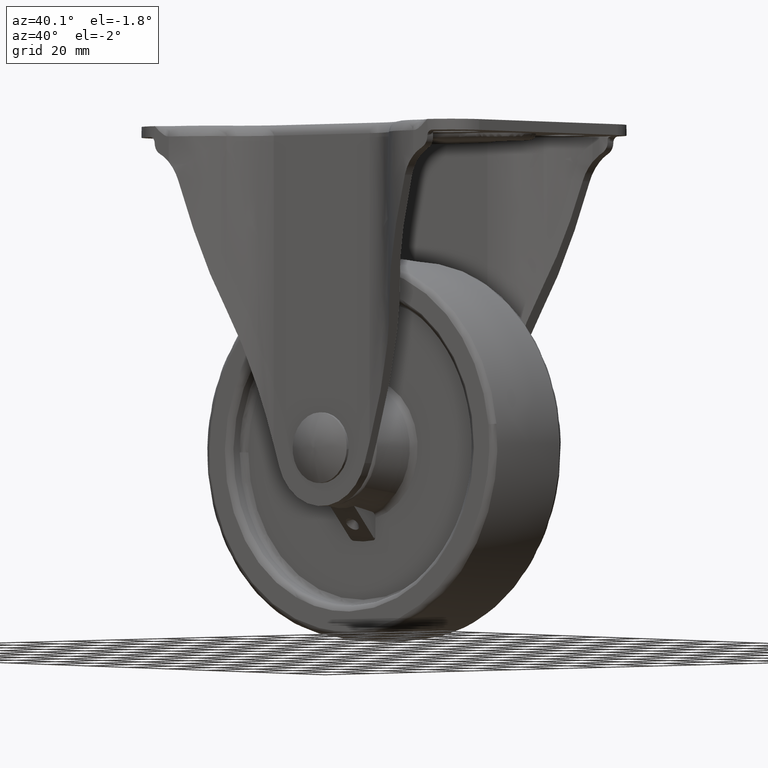
[diagram: clean part render]
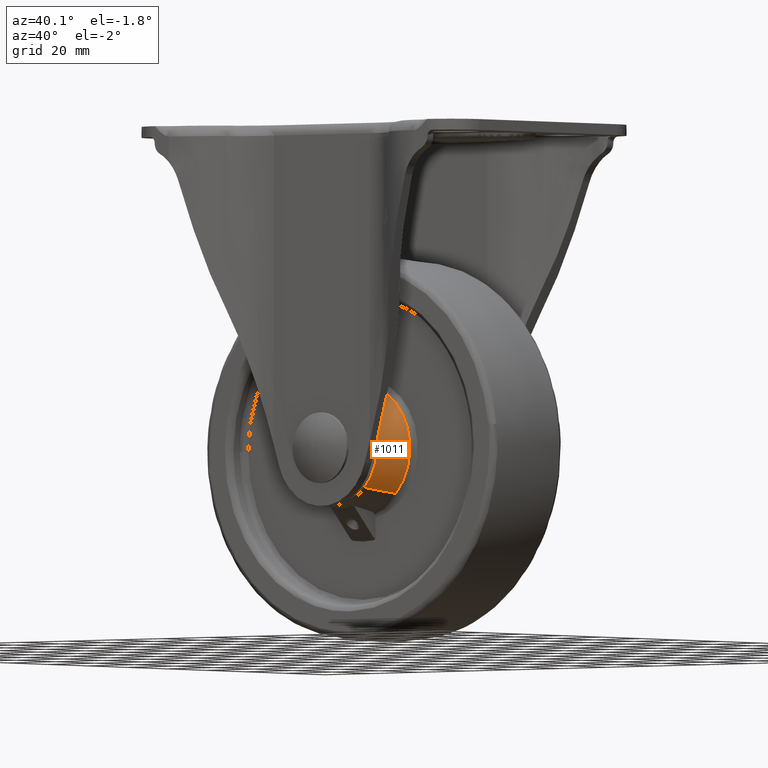
[diagram: same view with one face highlighted and labeled with its STEP entity id]
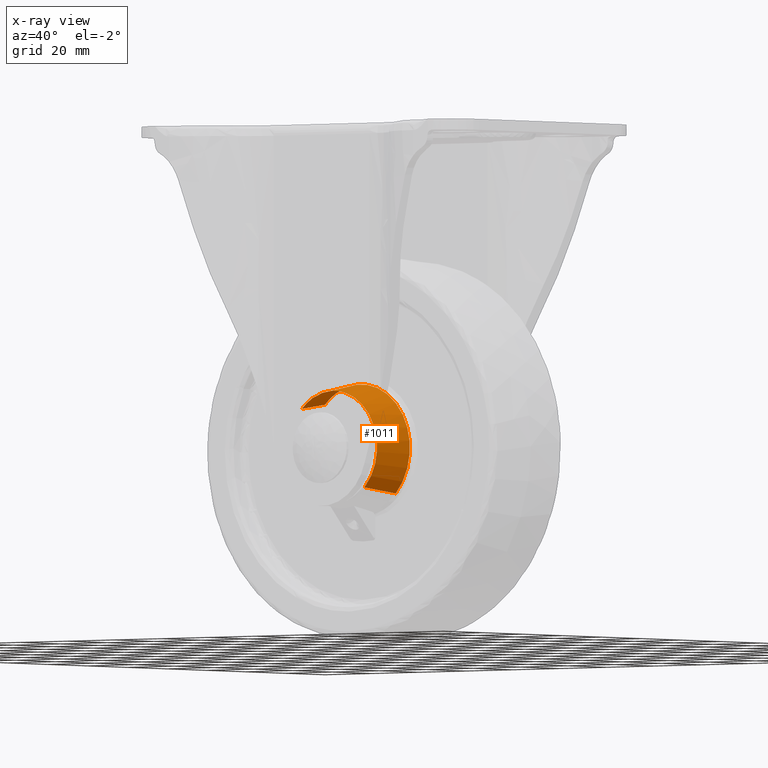
[diagram: x-ray of the same camera — body ghosted, the highlighted face saturated]
A machine part, auxiliary view. The second image highlights one B-rep face of the part: STEP entity #1011.
The next image is the same camera in x-ray: the body ghosted, the highlighted face saturated — about 0% of this face is hidden behind the body in this view.
In plain terms, the highlighted face is a freeform B-spline surface patch.
Its self-contained STEP definition (entity closure, byte-faithful):
#803=CARTESIAN_POINT('',(-15.051621192628151,-11.972101837003610,14.732329258532770));
#804=VERTEX_POINT('',#803);
#820=CARTESIAN_POINT('',(15.051621172807369,-11.972100720820990,-14.732343560151280));
#821=VERTEX_POINT('',#820);
#822=CARTESIAN_POINT('',(15.051621172807371,-11.972100720820997,-14.732343560151278));
#823=CARTESIAN_POINT('',(22.118448203407993,-11.972100720820997,-7.512361656801093));
#824=CARTESIAN_POINT('',(20.910581288129780,-11.972100929607560,2.518054082337512));
#825=CARTESIAN_POINT('',(18.677554631028443,-11.972101315598723,21.061641495811855));
#826=CARTESIAN_POINT('',(0.000000119517598,-11.972101669289570,21.061641452188390));
#827=CARTESIAN_POINT('',(-8.856570571563466,-11.972101837003610,21.061641431502910));
#828=CARTESIAN_POINT('',(-15.051621192628151,-11.972101837003608,14.732329258532769));
#836=(BOUNDED_CURVE()B_SPLINE_CURVE(2,(#822,#823,#824,#825,#826,#827,#828),.UNSPECIFIED.,.F.,.U.)B_SPLINE_CURVE_WITH_KNOTS((3,2,2,3),(0.097095728330001,0.250000000000000,0.500000000000000,0.636637793524819),.UNSPECIFIED.)CURVE()GEOMETRIC_REPRESENTATION_ITEM()RATIONAL_B_SPLINE_CURVE((0.880366134209270,0.845984643392179,1.0,0.748183365111898,1.0,0.862369322544180,0.875183061799474))REPRESENTATION_ITEM(''));
#837=EDGE_CURVE('',#821,#804,#836,.T.);
#877=CARTESIAN_POINT('',(13.325070980316800,-25.673648140294681,-13.042418054353750));
#878=VERTEX_POINT('',#877);
#879=CARTESIAN_POINT('',(13.325070980316800,-25.673648140294681,-13.042418054353750));
#880=CARTESIAN_POINT('',(15.051621172807369,-11.972100720820990,-14.732343560151280));
#881=QUASI_UNIFORM_CURVE('',1,(#879,#880),.UNSPECIFIED.,.F.,.U.);
#882=EDGE_CURVE('',#878,#821,#881,.T.);
#914=CARTESIAN_POINT('',(-13.325070980316800,-25.673648140294681,13.042404054353570));
#915=VERTEX_POINT('',#914);
#931=CARTESIAN_POINT('',(-13.325070980316800,-25.673648140294681,13.042404054353570));
#932=CARTESIAN_POINT('',(-15.051621192628151,-11.972101837003610,14.732329258532770));
#933=QUASI_UNIFORM_CURVE('',1,(#931,#932),.UNSPECIFIED.,.F.,.U.);
#934=EDGE_CURVE('',#915,#804,#933,.T.);
#943=CARTESIAN_POINT('',(-13.281907225377500,-26.016186826649840,13.000155916582949));
#944=CARTESIAN_POINT('',(-0.281744308794460,-26.016186826649840,26.282063141960442));
#945=CARTESIAN_POINT('',(13.000162916583040,-26.016186826649840,13.281900225377409));
#946=CARTESIAN_POINT('',(26.282070141960542,-26.016186826649840,0.281737308794367));
#947=CARTESIAN_POINT('',(13.281907225377500,-26.016186826649840,-13.000169916583131));
#948=CARTESIAN_POINT('',(-15.095864021484310,-11.620998568177431,14.775633901248760));
#949=CARTESIAN_POINT('',(-0.320223120235456,-11.620998568177429,29.871497922733067));
#950=CARTESIAN_POINT('',(14.775640901248851,-11.620998568177431,15.095857021484219));
#951=CARTESIAN_POINT('',(29.871504922733170,-11.620998568177429,0.320216120235363));
#952=CARTESIAN_POINT('',(15.095864021484310,-11.620998568177431,-14.775647901248950));
#960=(BOUNDED_SURFACE()B_SPLINE_SURFACE(2,1,((#943,#948),(#944,#949),(#945,#950),(#946,#951),(#947,#952)),.UNSPECIFIED.,.F.,.F.,.U.)B_SPLINE_SURFACE_WITH_KNOTS((3,2,3),(2,2),(0.0,34.998655739313328,69.997311478626656),(0.0,14.617257141099930),.UNSPECIFIED.)GEOMETRIC_REPRESENTATION_ITEM()RATIONAL_B_SPLINE_SURFACE(((1.0,1.0),(0.707106781186548,0.707106781186548),(1.0,1.0),(0.707106781186548,0.707106781186548),(1.0,1.0)))REPRESENTATION_ITEM('')SURFACE());
#961=ORIENTED_EDGE('',*,*,#837,.T.);
#962=ORIENTED_EDGE('',*,*,#934,.F.);
#963=CARTESIAN_POINT('',(0.0,-25.673648139588451,18.645689628040412));
#964=VERTEX_POINT('',#963);
#965=CARTESIAN_POINT('',(0.0,-25.673648139588451,18.645689628040412));
#966=CARTESIAN_POINT('',(-7.840645883217458,-25.673648139867044,18.645689628039374));
#967=CARTESIAN_POINT('',(-13.325070980316806,-25.673648140294681,13.042404054353572));
#975=(BOUNDED_CURVE()B_SPLINE_CURVE(2,(#965,#966,#967),.UNSPECIFIED.,.F.,.U.)B_SPLINE_CURVE_WITH_KNOTS((3,3),(0.500000000000000,0.626617479586642),.UNSPECIFIED.)CURVE()GEOMETRIC_REPRESENTATION_ITEM()RATIONAL_B_SPLINE_CURVE((1.0,0.851658395383287,0.853577911521825))REPRESENTATION_ITEM(''));
#976=EDGE_CURVE('',#964,#915,#975,.T.);
#977=ORIENTED_EDGE('',*,*,#976,.F.);
#978=CARTESIAN_POINT('',(18.434100502878788,-25.673648141141872,2.801053760581461));
#979=VERTEX_POINT('',#978);
#980=CARTESIAN_POINT('',(18.434100502878785,-25.673648141141872,2.801053760581461));
#981=CARTESIAN_POINT('',(16.026508779892357,-25.673648140365167,18.645689628019838));
#982=CARTESIAN_POINT('',(0.0,-25.673648139588451,18.645689628040412));
#990=(BOUNDED_CURVE()B_SPLINE_CURVE(2,(#980,#981,#982),.UNSPECIFIED.,.F.,.U.)B_SPLINE_CURVE_WITH_KNOTS((3,3),(0.275897584624449,0.500000000000000),.UNSPECIFIED.)CURVE()GEOMETRIC_REPRESENTATION_ITEM()RATIONAL_B_SPLINE_CURVE((0.945604234432738,0.737447688867142,1.0))REPRESENTATION_ITEM(''));
#991=EDGE_CURVE('',#979,#964,#990,.T.);
#992=ORIENTED_EDGE('',*,*,#991,.F.);
#993=CARTESIAN_POINT('',(13.325070980316795,-25.673648140294684,-13.042418054353748));
#994=CARTESIAN_POINT('',(18.645696627833715,-25.673648140713375,-7.606481852159615));
#995=CARTESIAN_POINT('',(18.645696627785998,-25.673648141032100,-0.000007000035706));
#996=CARTESIAN_POINT('',(18.645696627777159,-25.673648141091117,1.408515516805118));
#997=CARTESIAN_POINT('',(18.434100502878785,-25.673648141141872,2.801053760581461));
#1005=(BOUNDED_CURVE()B_SPLINE_CURVE(2,(#993,#994,#995,#996,#997),.UNSPECIFIED.,.F.,.U.)B_SPLINE_CURVE_WITH_KNOTS((3,2,3),(0.126617479586642,0.250000000000000,0.275897584624449),.UNSPECIFIED.)CURVE()GEOMETRIC_REPRESENTATION_ITEM()RATIONAL_B_SPLINE_CURVE((0.853577911521825,0.855448385803261,1.0,0.969659092319406,0.945604234432738))REPRESENTATION_ITEM(''));
#1006=EDGE_CURVE('',#878,#979,#1005,.T.);
#1007=ORIENTED_EDGE('',*,*,#1006,.F.);
#1008=ORIENTED_EDGE('',*,*,#882,.T.);
#1009=EDGE_LOOP('',(#961,#962,#977,#992,#1007,#1008));
#1010=FACE_OUTER_BOUND('',#1009,.T.);
#1011=ADVANCED_FACE('',(#1010),#960,.T.);